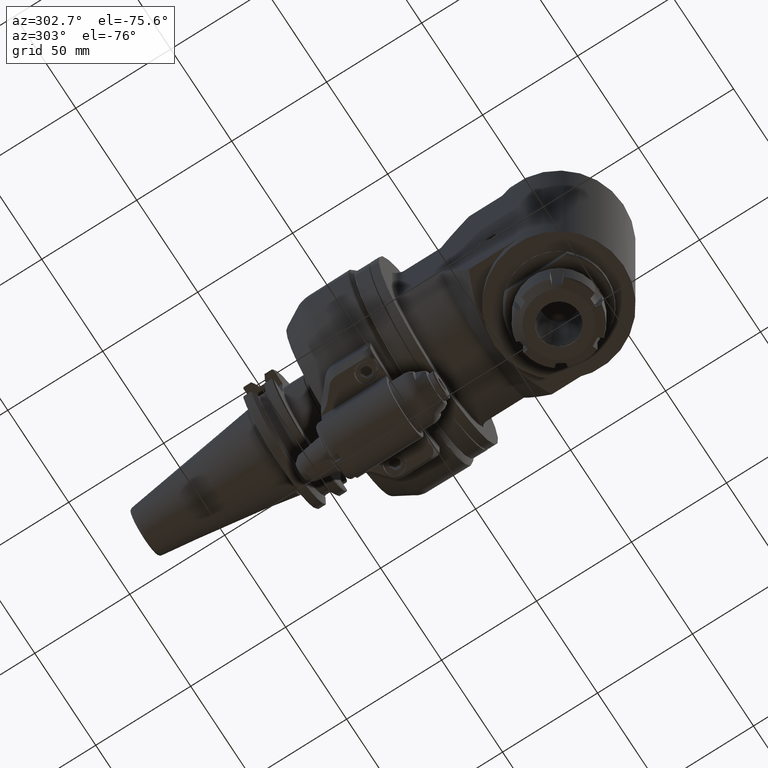
[diagram: clean part render]
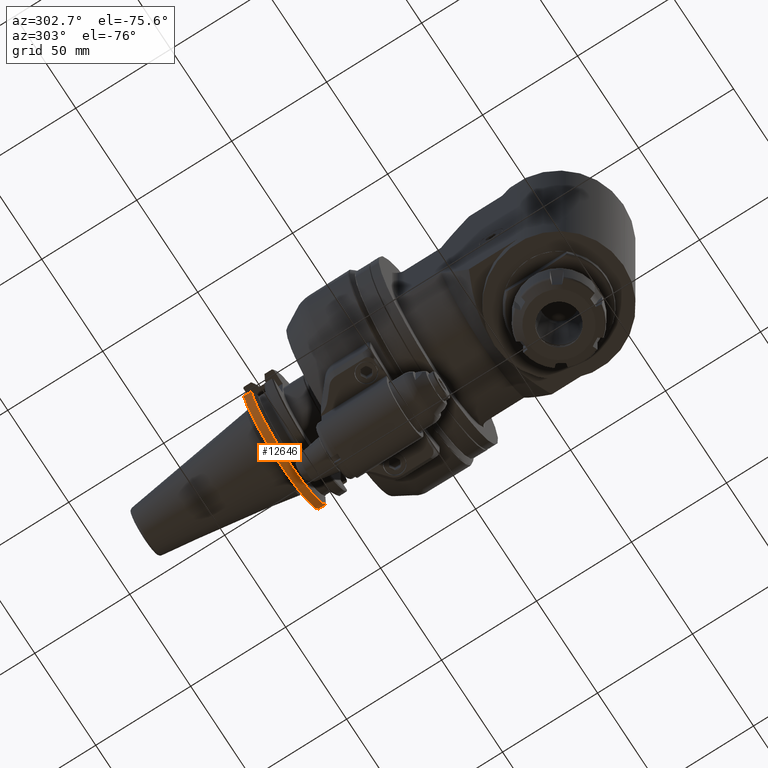
[diagram: same view with one face highlighted and labeled with its STEP entity id]
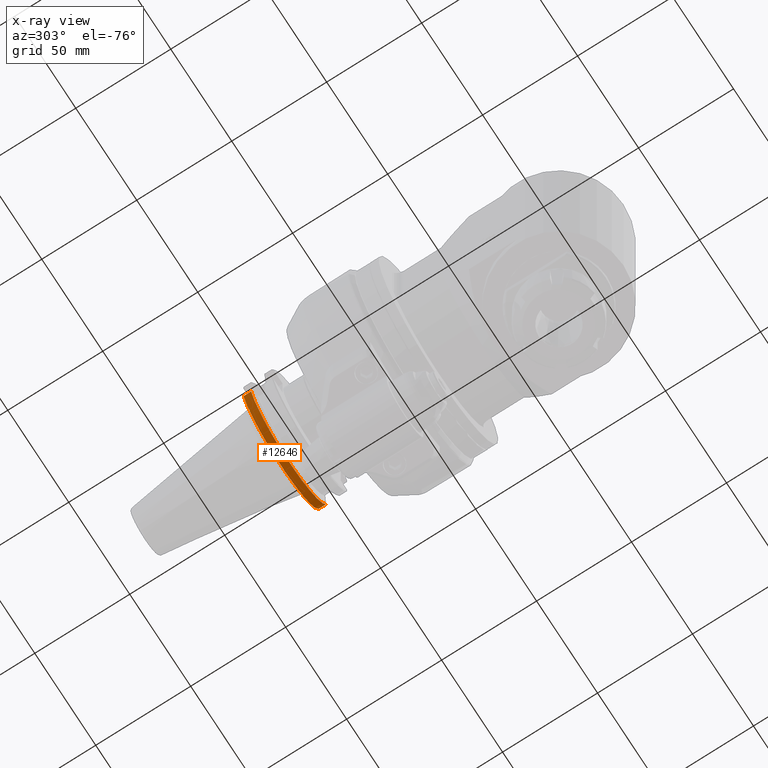
[diagram: x-ray of the same camera — body ghosted, the highlighted face saturated]
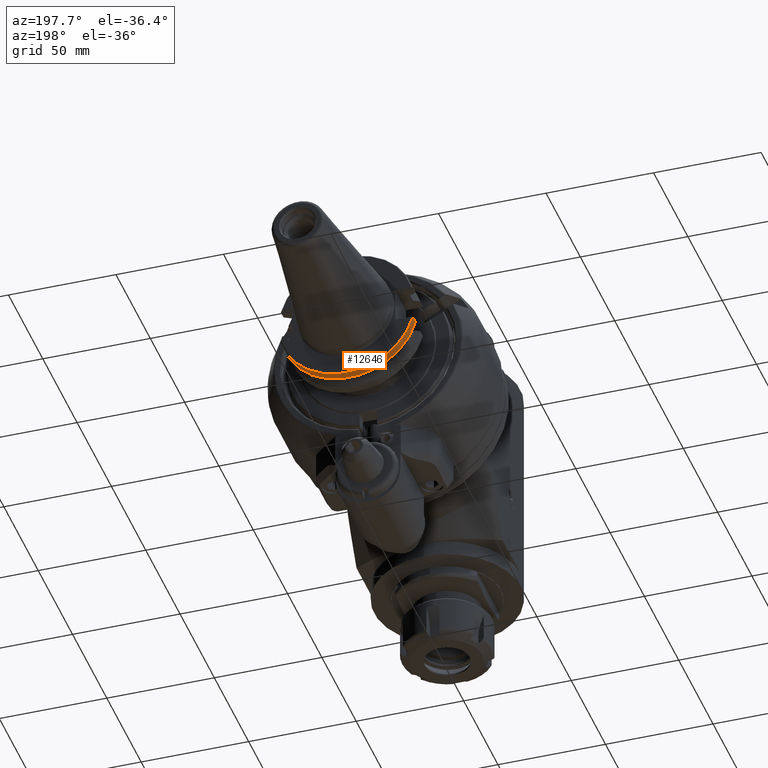
[diagram: same view with one face highlighted and labeled with its STEP entity id]
A machine part, auxiliary view. The second image highlights one B-rep face of the part: STEP entity #12646.
The next image is the same camera in x-ray: the body ghosted, the highlighted face saturated — about 0% of this face is hidden behind the body in this view.
A second angle (auxiliary view) of the same face is appended — the face is thin or edge-on in the first view.
In plain terms, the highlighted cylindrical surface (partial cylindrical patch) has radius 31.75 mm, axis along (0, -1, 0).
Its self-contained STEP definition (entity closure, byte-faithful):
#1026=CYLINDRICAL_SURFACE('',#13659,31.75);
#1336=FACE_OUTER_BOUND('',#2160,.T.);
#2160=EDGE_LOOP('',(#9189,#9190,#9191,#9192));
#3082=CIRCLE('',#13658,31.75);
#3083=CIRCLE('',#13660,31.75);
#3850=LINE('',#20069,#4673);
#3855=LINE('',#20107,#4678);
#4673=VECTOR('',#15626,3.93332990951902);
#4678=VECTOR('',#15643,3.93332990998002);
#5578=VERTEX_POINT('',#20057);
#5579=VERTEX_POINT('',#20068);
#5585=VERTEX_POINT('',#20095);
#5586=VERTEX_POINT('',#20106);
#6941=EDGE_CURVE('',#5579,#5578,#3850,.T.);
#6951=EDGE_CURVE('',#5586,#5585,#3855,.T.);
#6959=EDGE_CURVE('',#5579,#5585,#3082,.T.);
#6960=EDGE_CURVE('',#5586,#5578,#3083,.T.);
#9189=ORIENTED_EDGE('',*,*,#6941,.T.);
#9190=ORIENTED_EDGE('',*,*,#6960,.F.);
#9191=ORIENTED_EDGE('',*,*,#6951,.T.);
#9192=ORIENTED_EDGE('',*,*,#6959,.F.);
#12646=ADVANCED_FACE('',(#1336),#1026,.T.);
#13658=AXIS2_PLACEMENT_3D('',#20148,#15653,#15654);
#13659=AXIS2_PLACEMENT_3D('',#20149,#15655,#15656);
#13660=AXIS2_PLACEMENT_3D('',#20150,#15657,#15658);
#15626=DIRECTION('',(-2.52389054949899E-8,0.999999999999995,9.45133301197095E-8));
#15643=DIRECTION('',(-2.52354144961899E-8,-0.999999999999995,-9.45002512936696E-8));
#15653=DIRECTION('center_axis',(0.,-1.,0.));
#15654=DIRECTION('ref_axis',(-0.96614491666623,0.,-0.258000000000008));
#15655=DIRECTION('center_axis',(0.,-1.,0.));
#15656=DIRECTION('ref_axis',(1.,0.,0.));
#15657=DIRECTION('center_axis',(0.,1.,0.));
#15658=DIRECTION('ref_axis',(0.96614491666623,0.,-0.258000000000008));
#20057=CARTESIAN_POINT('',(-30.67510110415,70.325,-8.1915));
#20068=CARTESIAN_POINT('',(-30.6751009773952,66.3916667873848,-8.19150055413481));
#20069=CARTESIAN_POINT('',(-30.67510100488,66.39167009048,-8.191500371752));
#20095=CARTESIAN_POINT('',(30.6751009774112,66.391666787382,-8.19150055405865));
#20106=CARTESIAN_POINT('',(30.67510110415,70.325,-8.1915));
#20107=CARTESIAN_POINT('',(30.67510110415,70.325,-8.1915));
#20148=CARTESIAN_POINT('Origin',(0.,66.39166676908,0.));
#20149=CARTESIAN_POINT('Origin',(0.,62.8875,0.));
#20150=CARTESIAN_POINT('Origin',(0.,70.325,0.));